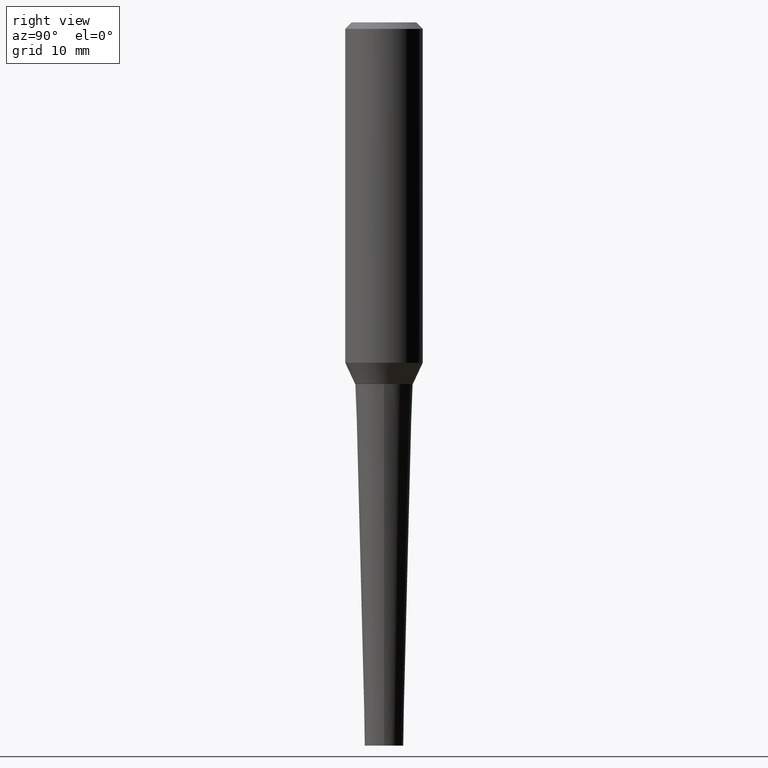
[diagram: clean part render]
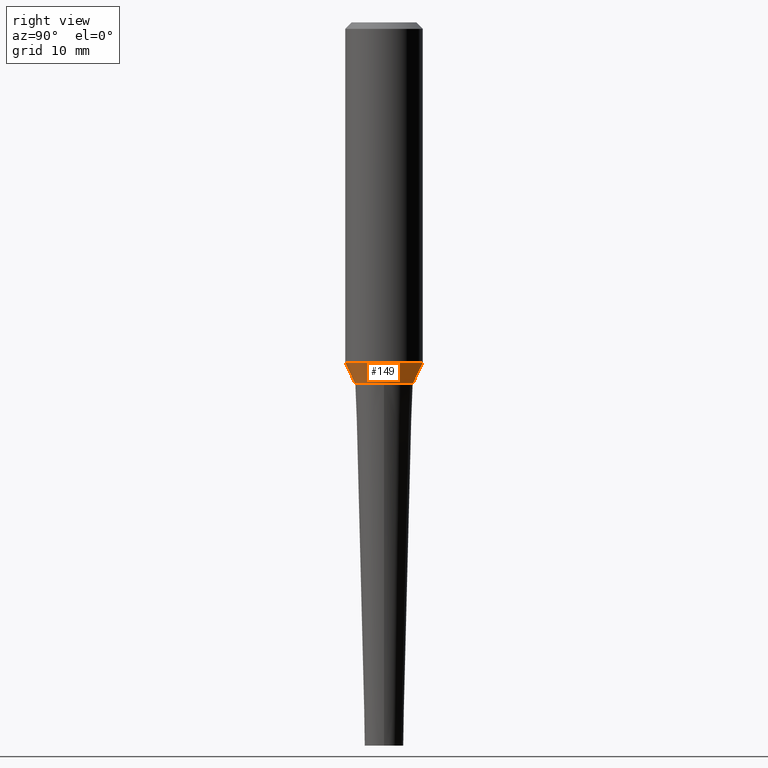
[diagram: same view with one face highlighted and labeled with its STEP entity id]
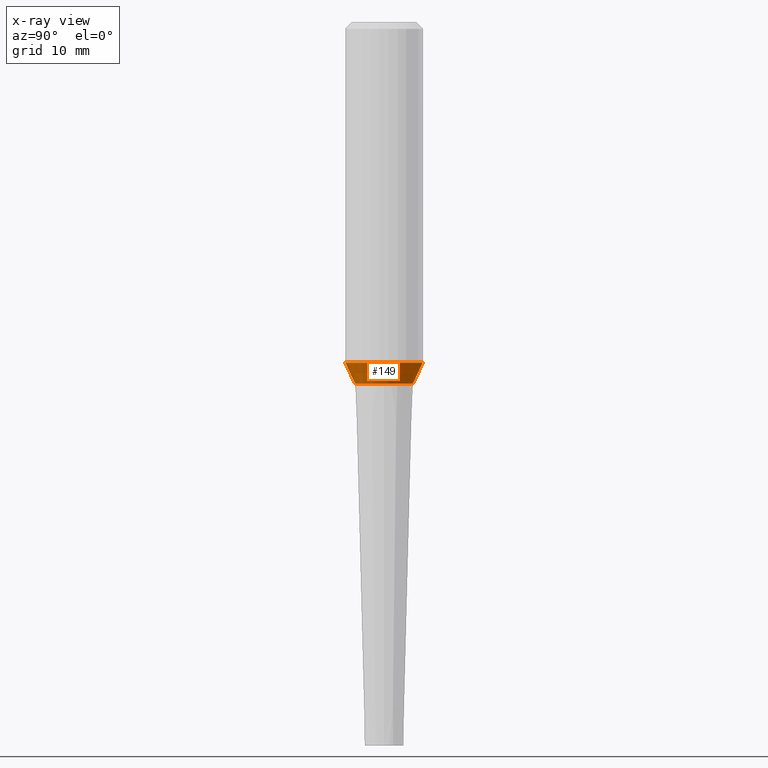
[diagram: x-ray of the same camera — body ghosted, the highlighted face saturated]
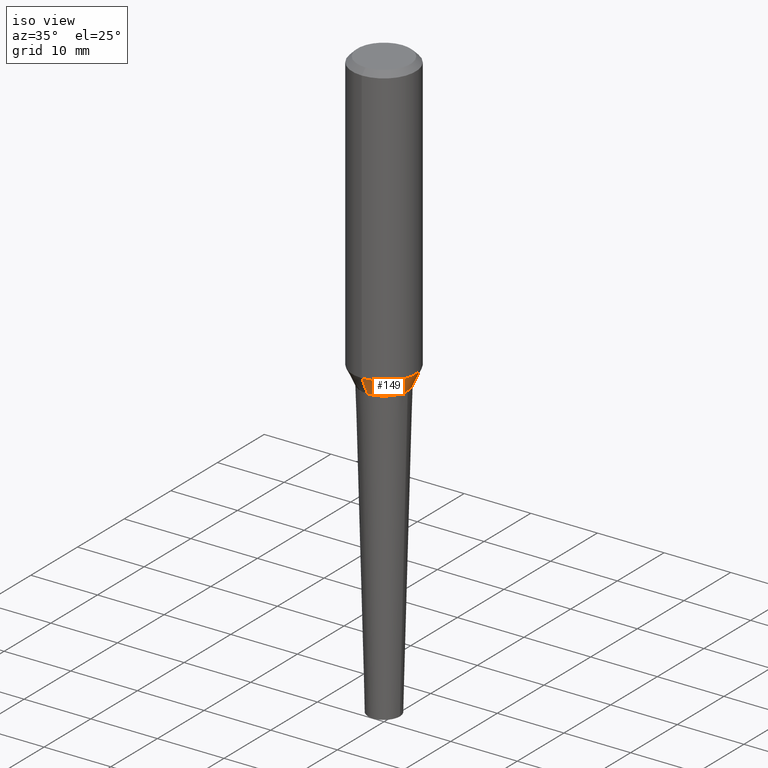
[diagram: same view with one face highlighted and labeled with its STEP entity id]
A machine part, right view. The second image highlights one B-rep face of the part: STEP entity #149.
The next image is the same camera in x-ray: the body ghosted, the highlighted face saturated — about 0% of this face is hidden behind the body in this view.
A second angle (iso view) of the same face is appended — the face is thin or edge-on in the first view.
In plain terms, the highlighted conical surface has half-angle 25 deg.
Its self-contained STEP definition (entity closure, byte-faithful):
#8 = CARTESIAN_POINT ( 'NONE',  ( 4.348926392121621761E-29, -6.004218604581148608E-15, -1.749063130645136743 ) ) ;
#49 = AXIS2_PLACEMENT_3D ( 'NONE', #96, #97, #190 ) ;
#51 = DIRECTION ( 'NONE',  ( -2.680706346625087460E-29, 3.154607792043817320E-15, 1.000000000000000000 ) ) ;
#63 = CIRCLE ( 'NONE', #95, 0.1400122321009280857 ) ;
#68 = VECTOR ( 'NONE', #110, 39.37007874015748854 ) ;
#95 = AXIS2_PLACEMENT_3D ( 'NONE', #8, #51, #205 ) ;
#96 = CARTESIAN_POINT ( 'NONE',  ( 4.348926392121621761E-29, -6.004218604581148608E-15, -1.749063130645136743 ) ) ;
#97 = DIRECTION ( 'NONE',  ( -2.680706346625087460E-29, 3.154607792043817320E-15, 1.000000000000000000 ) ) ;
#110 = DIRECTION ( 'NONE',  ( 3.002883358794126890E-15, 0.4226182617407031050, 0.9063077870366481603 ) ) ;
#129 = LINE ( 'NONE', #357, #313 ) ;
#133 = CARTESIAN_POINT ( 'NONE',  ( 1.332267629550207373E-15, 0.1874999999999942824, -1.647225283746026170 ) ) ;
#142 = AXIS2_PLACEMENT_3D ( 'NONE', #321, #226, #322 ) ;
#147 = CARTESIAN_POINT ( 'NONE',  ( 9.948467443687599903E-16, 0.1400122321009222015, -1.749063130645137187 ) ) ;
#148 = ORIENTED_EDGE ( 'NONE', *, *, #152, .F. ) ;
#149 = ADVANCED_FACE ( 'NONE', ( #255 ), #256, .T. ) ;
#152 = EDGE_CURVE ( 'NONE', #307, #179, #129, .T. ) ;
#179 = VERTEX_POINT ( 'NONE', #323 ) ;
#190 = DIRECTION ( 'NONE',  ( -6.982962677686266711E-15, -1.000000000000000000, 3.902299038693997878E-15 ) ) ;
#197 = CARTESIAN_POINT ( 'NONE',  ( 9.948467443687592014E-16, 0.1400122321009221182, -1.749063130645137187 ) ) ;
#201 = VERTEX_POINT ( 'NONE', #133 ) ;
#205 = DIRECTION ( 'NONE',  ( -6.982962677686266711E-15, -1.000000000000000000, 3.902299038693998666E-15 ) ) ;
#211 = ORIENTED_EDGE ( 'NONE', *, *, #343, .T. ) ;
#216 = CIRCLE ( 'NONE', #142, 0.1874999999999999445 ) ;
#226 = DIRECTION ( 'NONE',  ( -2.680706346625087460E-29, 3.154607792043817320E-15, 1.000000000000000000 ) ) ;
#255 = FACE_OUTER_BOUND ( 'NONE', #367, .T. ) ;
#256 = CONICAL_SURFACE ( 'NONE', #49, 0.1400122321009281134, 0.4363323129985833271 ) ;
#295 = EDGE_CURVE ( 'NONE', #179, #201, #216, .T. ) ;
#302 = CARTESIAN_POINT ( 'NONE',  ( -9.777001911802836843E-16, -0.1400122321009340254, -1.749063130645136077 ) ) ;
#307 = VERTEX_POINT ( 'NONE', #302 ) ;
#313 = VECTOR ( 'NONE', #352, 39.37007874015748143 ) ;
#321 = CARTESIAN_POINT ( 'NONE',  ( 4.075929029612540181E-29, -5.682960139228247443E-15, -1.647225283746025726 ) ) ;
#322 = DIRECTION ( 'NONE',  ( -6.982962677686266711E-15, -1.000000000000000000, 2.913971193241881555E-15 ) ) ;
#323 = CARTESIAN_POINT ( 'NONE',  ( -1.309305502066133790E-15, -0.1875000000000056066, -1.647225283746025060 ) ) ;
#343 = EDGE_CURVE ( 'NONE', #307, #363, #63, .T. ) ;
#352 = DIRECTION ( 'NONE',  ( -2.951127548643979994E-15, -0.4226182617406973874, 0.9063077870366508249 ) ) ;
#357 = CARTESIAN_POINT ( 'NONE',  ( -9.777001911802844731E-16, -0.1400122321009341364, -1.749063130645136077 ) ) ;
#363 = VERTEX_POINT ( 'NONE', #147 ) ;
#365 = ORIENTED_EDGE ( 'NONE', *, *, #295, .F. ) ;
#367 = EDGE_LOOP ( 'NONE', ( #211, #394, #365, #148 ) ) ;
#392 = LINE ( 'NONE', #197, #68 ) ;
#394 = ORIENTED_EDGE ( 'NONE', *, *, #411, .T. ) ;
#411 = EDGE_CURVE ( 'NONE', #363, #201, #392, .T. ) ;